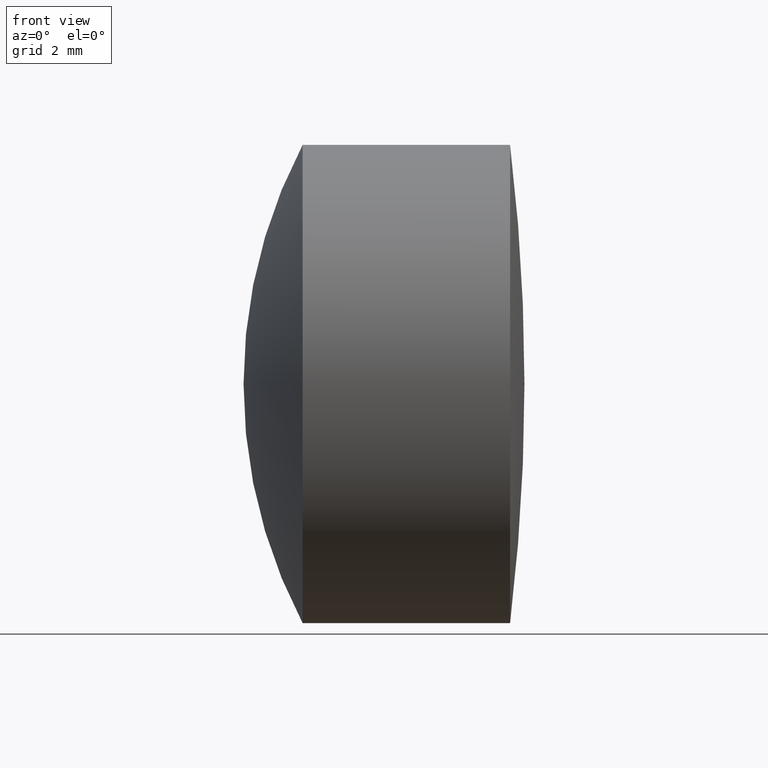
[diagram: clean part render]
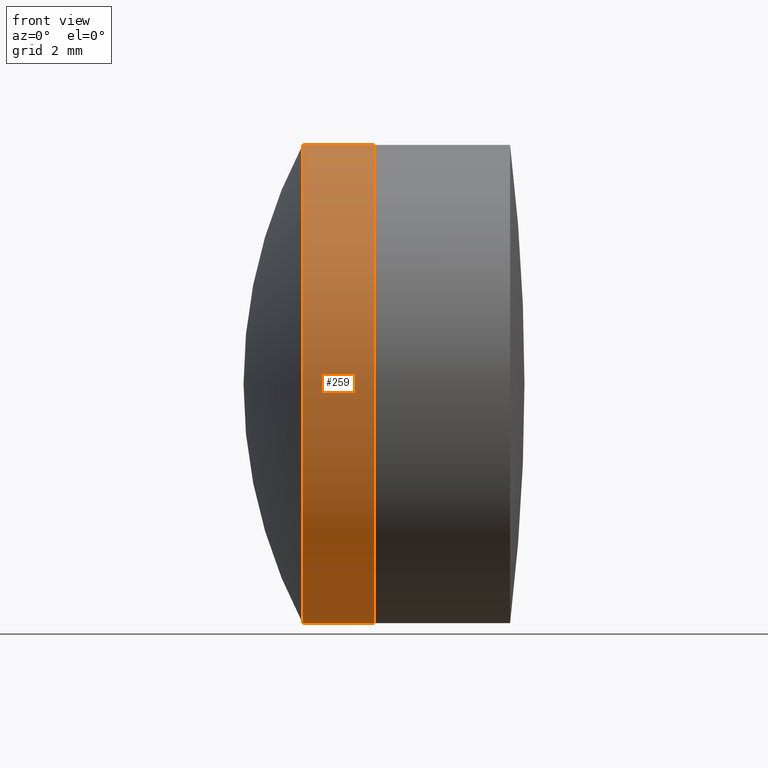
[diagram: same view with one face highlighted and labeled with its STEP entity id]
A machine part, front view. The second image highlights one B-rep face of the part: STEP entity #259.
In plain terms, the highlighted cylindrical surface (partial cylindrical patch) has radius 8 mm, axis along (-1, -0, -0).
Its self-contained STEP definition (entity closure, byte-faithful):
#8 = CYLINDRICAL_SURFACE ( 'NONE', #298, 8.000000000000000000 ) ;
#16 = VERTEX_POINT ( 'NONE', #154 ) ;
#23 = DIRECTION ( 'NONE',  ( -1.000000000000000000, -0.0000000000000000000, -0.0000000000000000000 ) ) ;
#41 = DIRECTION ( 'NONE',  ( -1.000000000000000000, -0.0000000000000000000, -0.0000000000000000000 ) ) ;
#51 = DIRECTION ( 'NONE',  ( 0.0000000000000000000, 0.0000000000000000000, 1.000000000000000000 ) ) ;
#53 = DIRECTION ( 'NONE',  ( -1.000000000000000000, -0.0000000000000000000, -0.0000000000000000000 ) ) ;
#64 = CARTESIAN_POINT ( 'NONE',  ( 14.09347655816146400, 0.0000000000000000000, 0.0000000000000000000 ) ) ;
#75 = ORIENTED_EDGE ( 'NONE', *, *, #139, .T. ) ;
#76 = VECTOR ( 'NONE', #41, 1000.000000000000000 ) ;
#84 = LINE ( 'NONE', #107, #76 ) ;
#89 = DIRECTION ( 'NONE',  ( -1.000000000000000000, -0.0000000000000000000, -0.0000000000000000000 ) ) ;
#94 = CIRCLE ( 'NONE', #171, 8.000000000000000000 ) ;
#105 = VERTEX_POINT ( 'NONE', #287 ) ;
#107 = CARTESIAN_POINT ( 'NONE',  ( -9.702612178336682500, 9.797174393178825700E-016, -8.000000000000000000 ) ) ;
#111 = CARTESIAN_POINT ( 'NONE',  ( -9.702612178336682500, 0.0000000000000000000, 0.0000000000000000000 ) ) ;
#112 = DIRECTION ( 'NONE',  ( 0.0000000000000000000, 0.0000000000000000000, 1.000000000000000000 ) ) ;
#125 = DIRECTION ( 'NONE',  ( -1.000000000000000000, -0.0000000000000000000, -0.0000000000000000000 ) ) ;
#126 = ORIENTED_EDGE ( 'NONE', *, *, #266, .F. ) ;
#130 = VERTEX_POINT ( 'NONE', #315 ) ;
#135 = EDGE_LOOP ( 'NONE', ( #267, #277, #75, #126 ) ) ;
#139 = EDGE_CURVE ( 'NONE', #165, #105, #186, .T. ) ;
#154 = CARTESIAN_POINT ( 'NONE',  ( 14.09347655816146400, 0.0000000000000000000, -8.000000000000000000 ) ) ;
#165 = VERTEX_POINT ( 'NONE', #217 ) ;
#171 = AXIS2_PLACEMENT_3D ( 'NONE', #64, #53, #51 ) ;
#186 = LINE ( 'NONE', #197, #200 ) ;
#197 = CARTESIAN_POINT ( 'NONE',  ( -9.702612178336682500, 0.0000000000000000000, 8.000000000000000000 ) ) ;
#200 = VECTOR ( 'NONE', #23, 1000.000000000000000 ) ;
#213 = AXIS2_PLACEMENT_3D ( 'NONE', #249, #89, #220 ) ;
#217 = CARTESIAN_POINT ( 'NONE',  ( 16.48846299245593300, 0.0000000000000000000, 8.000000000000000000 ) ) ;
#220 = DIRECTION ( 'NONE',  ( 0.0000000000000000000, 0.0000000000000000000, 1.000000000000000000 ) ) ;
#249 = CARTESIAN_POINT ( 'NONE',  ( 16.48846299245593300, 0.0000000000000000000, 0.0000000000000000000 ) ) ;
#259 = ADVANCED_FACE ( 'NONE', ( #279 ), #8, .T. ) ;
#266 = EDGE_CURVE ( 'NONE', #16, #105, #94, .T. ) ;
#267 = ORIENTED_EDGE ( 'NONE', *, *, #274, .F. ) ;
#274 = EDGE_CURVE ( 'NONE', #130, #16, #84, .T. ) ;
#277 = ORIENTED_EDGE ( 'NONE', *, *, #312, .T. ) ;
#279 = FACE_OUTER_BOUND ( 'NONE', #135, .T. ) ;
#287 = CARTESIAN_POINT ( 'NONE',  ( 14.09347655816146400, -9.797174393178823700E-016, 8.000000000000000000 ) ) ;
#298 = AXIS2_PLACEMENT_3D ( 'NONE', #111, #125, #112 ) ;
#312 = EDGE_CURVE ( 'NONE', #130, #165, #321, .T. ) ;
#315 = CARTESIAN_POINT ( 'NONE',  ( 16.48846299245593300, 9.797174393178825700E-016, -8.000000000000000000 ) ) ;
#321 = CIRCLE ( 'NONE', #213, 8.000000000000000000 ) ;